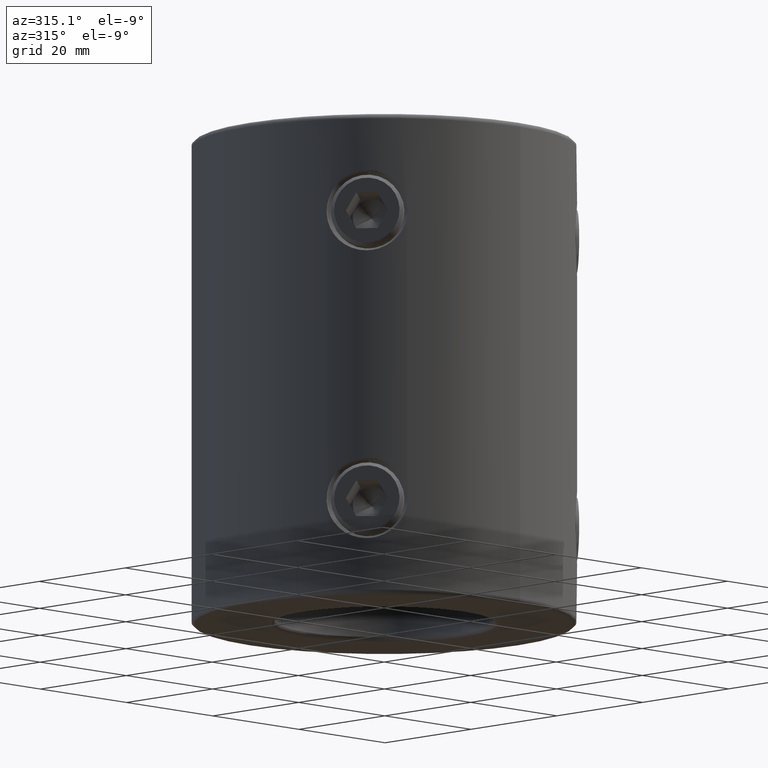
[diagram: clean part render]
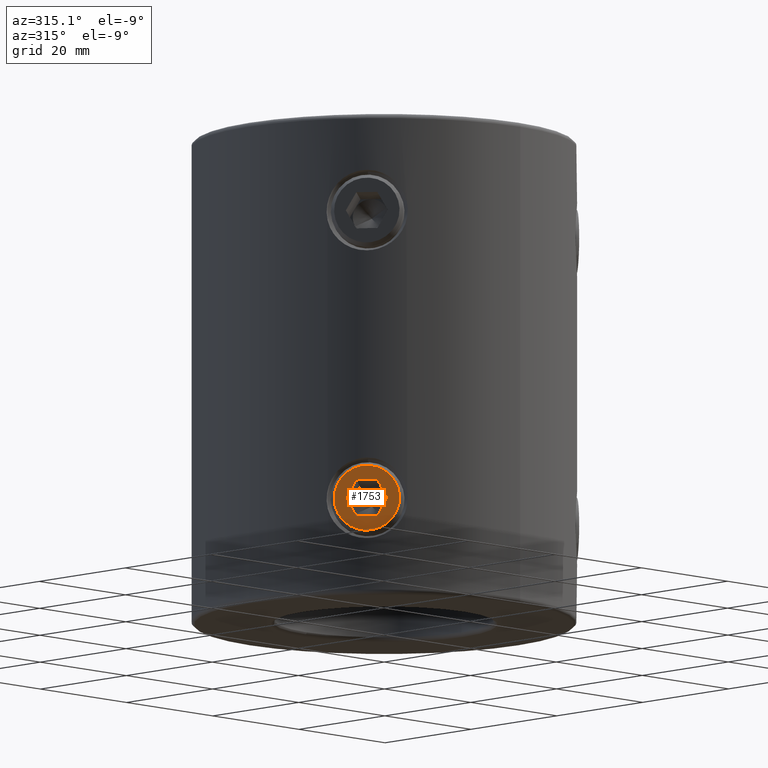
[diagram: same view with one face highlighted and labeled with its STEP entity id]
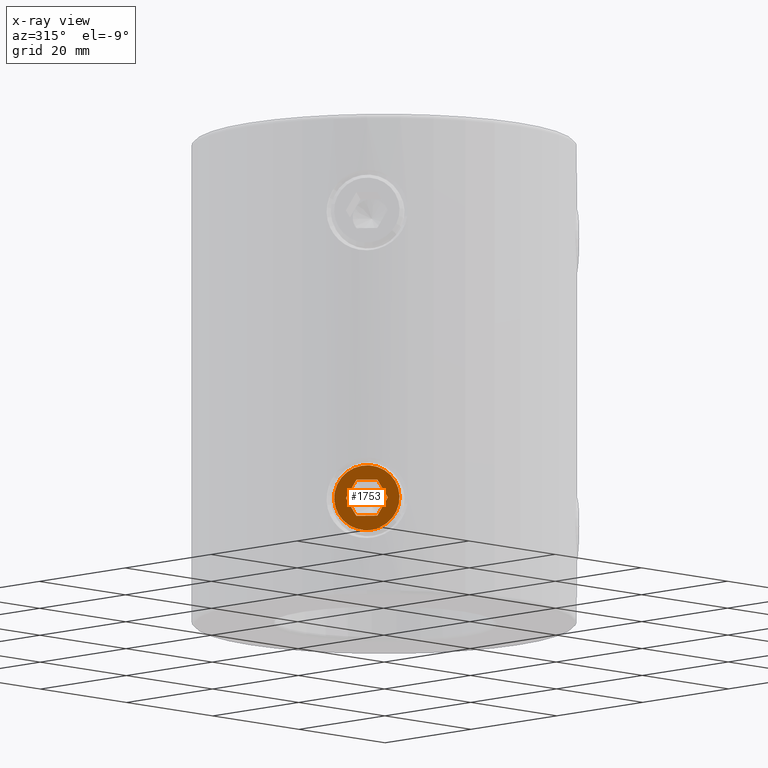
[diagram: x-ray of the same camera — body ghosted, the highlighted face saturated]
A machine part, auxiliary view. The second image highlights one B-rep face of the part: STEP entity #1753.
The next image is the same camera in x-ray: the body ghosted, the highlighted face saturated — about 0% of this face is hidden behind the body in this view.
In plain terms, the highlighted planar face has unit normal (0.766, 0.6428, -0).
Its self-contained STEP definition (entity closure, byte-faithful):
#1247=VERTEX_POINT('NONE',#3370);
#1271=EDGE_CURVE('NONE',#2645,#2671,#3396,.T.);
#1351=VERTEX_POINT('NONE',#3486);
#1399=VERTEX_POINT('NONE',#3537);
#1471=VERTEX_POINT('NONE',#3614);
#1557=VERTEX_POINT('NONE',#3709);
#1753=ADVANCED_FACE('NONE',(#3924,#3925),#3926,.F.);
#1759=EDGE_CURVE('NONE',#1399,#1471,#3932,.T.);
#2243=EDGE_CURVE('NONE',#1471,#1557,#4494,.T.);
#2363=VERTEX_POINT('NONE',#4632);
#2645=VERTEX_POINT('NONE',#4956);
#2671=VERTEX_POINT('NONE',#4983);
#2729=EDGE_CURVE('NONE',#2363,#1351,#5048,.T.);
#2813=EDGE_CURVE('NONE',#1557,#1247,#5139,.T.);
#2883=EDGE_CURVE('NONE',#1247,#2363,#5223,.T.);
#3005=EDGE_CURVE('NONE',#1351,#1399,#5360,.T.);
#3087=EDGE_CURVE('NONE',#2671,#2645,#5450,.T.);
#3370=CARTESIAN_POINT('',(-22.0952294721219,-23.0621624002234,-63.95));
#3396=CIRCLE('',#6004,5.4);
#3486=CARTESIAN_POINT('',(-25.4352518674804,-19.0816787112098,-60.95));
#3537=CARTESIAN_POINT('',(-26.5485926659332,-17.7548508148719,-63.95));
#3614=CARTESIAN_POINT('',(-25.4352518674804,-19.0816787112098,-66.95));
#3709=CARTESIAN_POINT('',(-23.2085702705747,-21.7353345038855,-66.95));
#3924=FACE_OUTER_BOUND('',#6921,.T.);
#3925=FACE_BOUND('',#6922,.T.);
#3926=PLANE('',#6923);
#3932=LINE('',#6934,#6935);
#4494=LINE('',#7885,#7886);
#4632=CARTESIAN_POINT('',(-23.2085702705747,-21.7353345038855,-60.95));
#4956=CARTESIAN_POINT('',(-21.3158909132049,-23.9909419276599,-61.25));
#4983=CARTESIAN_POINT('',(-27.3279312248502,-16.8260712874354,-66.65));
#5048=LINE('',#8890,#8891);
#5139=LINE('',#9209,#9210);
#5223=LINE('',#9358,#9359);
#5360=LINE('',#9608,#9609);
#5450=CIRCLE('',#9847,5.4);
#6004=AXIS2_PLACEMENT_3D('',#10230,#10231,#10232);
#6921=EDGE_LOOP('',(#10807,#10808));
#6922=EDGE_LOOP('',(#10809,#10810,#10811,#10812,#10813,#10814));
#6923=AXIS2_PLACEMENT_3D('',#10815,#10816,#10817);
#6934=CARTESIAN_POINT('',(-26.5485926659332,-17.7548508148719,-63.95));
#6935=VECTOR('',#10820,1000.0);
#7885=CARTESIAN_POINT('',(-25.4352518674804,-19.0816787112098,-66.95));
#7886=VECTOR('',#11603,1000.0);
#8890=CARTESIAN_POINT('',(-23.2085702705747,-21.7353345038855,-60.95));
#8891=VECTOR('',#12301,1000.0);
#9209=CARTESIAN_POINT('',(-23.2085702705747,-21.7353345038855,-66.95));
#9210=VECTOR('',#12380,1000.0);
#9358=CARTESIAN_POINT('',(-22.0952294721219,-23.0621624002234,-63.95));
#9359=VECTOR('',#12502,1000.0);
#9608=CARTESIAN_POINT('',(-25.4352518674804,-19.0816787112098,-60.95));
#9609=VECTOR('',#12656,1000.0);
#9847=AXIS2_PLACEMENT_3D('',#12750,#12751,#12752);
#10230=CARTESIAN_POINT('',(-24.3219110690275,-20.4085066075477,-63.95));
#10231=DIRECTION('',(-0.766044443118975,-0.642787609686543,4.26423109595396E-016));
#10232=DIRECTION('',(0.556670399226423,-0.663413948168935,0.5));
#10807=ORIENTED_EDGE('',*,*,#1271,.T.);
#10808=ORIENTED_EDGE('',*,*,#3087,.T.);
#10809=ORIENTED_EDGE('',*,*,#2813,.F.);
#10810=ORIENTED_EDGE('',*,*,#2243,.F.);
#10811=ORIENTED_EDGE('',*,*,#1759,.F.);
#10812=ORIENTED_EDGE('',*,*,#3005,.F.);
#10813=ORIENTED_EDGE('',*,*,#2729,.F.);
#10814=ORIENTED_EDGE('',*,*,#2883,.F.);
#10815=CARTESIAN_POINT('',(-24.3219110690275,-20.4085066075477,-63.95));
#10816=DIRECTION('',(0.766044443118975,0.642787609686543,-3.60822483003176E-016));
#10817=DIRECTION('',(0.321393804843272,-0.383022221559488,-0.866025403784439));
#10820=DIRECTION('',(0.321393804843272,-0.383022221559488,-0.866025403784438));
#11603=DIRECTION('',(0.642787609686543,-0.766044443118975,7.95807864051312E-016));
#12301=DIRECTION('',(-0.642787609686543,0.766044443118975,-3.41060513164848E-016));
#12380=DIRECTION('',(0.321393804843272,-0.383022221559487,0.866025403784439));
#12502=DIRECTION('',(-0.321393804843272,0.383022221559488,0.866025403784438));
#12656=DIRECTION('',(-0.321393804843272,0.383022221559487,-0.866025403784439));
#12750=CARTESIAN_POINT('',(-24.3219110690275,-20.4085066075477,-63.95));
#12751=DIRECTION('',(-0.766044443118975,-0.642787609686543,4.26423109595396E-016));
#12752=DIRECTION('',(0.556670399226423,-0.663413948168935,0.5));